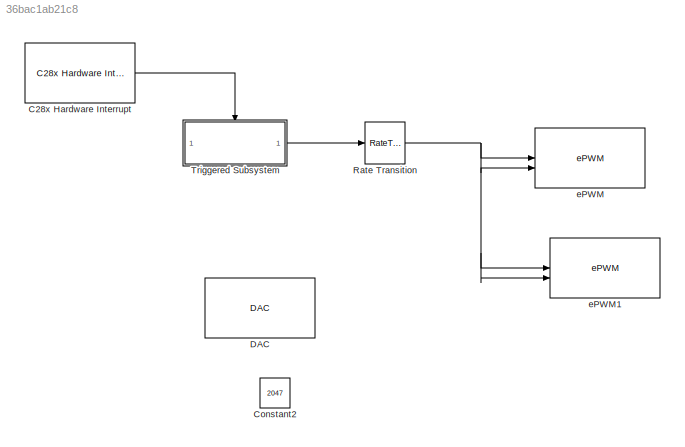
MODEL slx_36bac1ab21c8
KIND model
CONFIG AbsTol = auto
CONFIG EnableMultiTasking = on
CONFIG FixedStep = 10e-6
CONFIG MaxStep = auto
CONFIG MinStep = auto
CONFIG RelTol = 1e-3
CONFIG SampleTimeConstraint = Unconstrained
CONFIG SolverName = FixedStepAuto
CONFIG StartTime = 0.0
CONFIG StopTime = Inf
BLOCK [Reference] C28x Hardware Interrupt  REF=c2000lib/Scheduling/C28x Hardware Interrupt
  SourceBlock = c2000lib/Scheduling/C28x Hardware Interrupt
  SourceType = C28x Interrupt Block
BLOCK [Constant] Constant2
  Commented = on
  Value = 2047
BLOCK [Reference] DAC  REF=c2837xDlib/DAC
  Commented = on
  SourceBlock = c2837xDlib/DAC
  SourceType = codertarget.tic2000.blocks.DACWrite
BLOCK [RateTransition] Rate Transition
  Deterministic = off
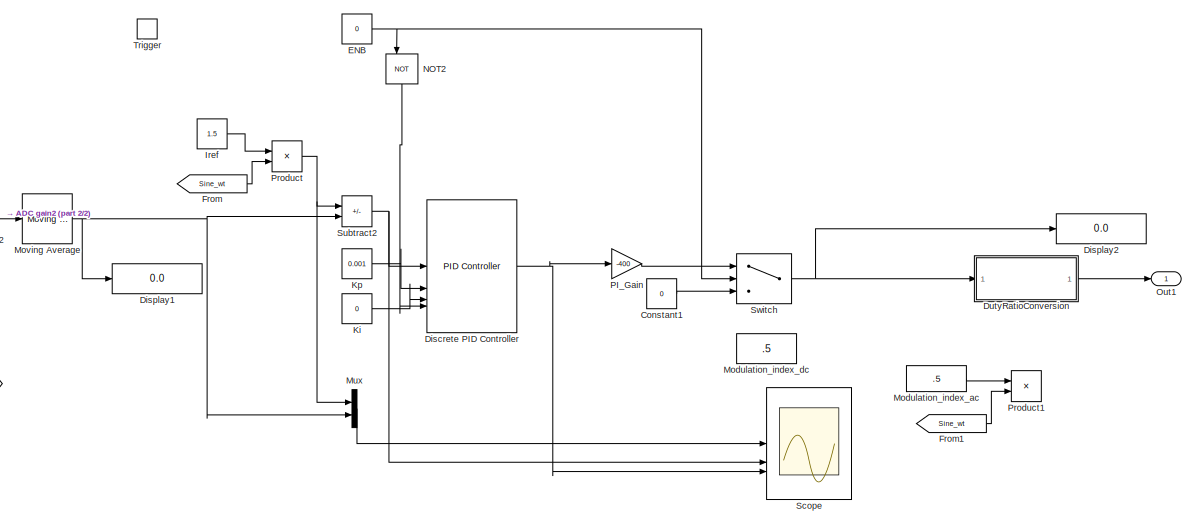
[diagram: Triggered Subsystem - part 1/2, most of the canvas]
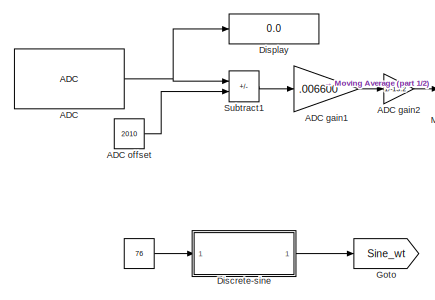
[diagram: Triggered Subsystem - part 2/2, middle left region]
BLOCK [SubSystem] Triggered Subsystem
  TreatAsAtomicUnit = on
BLOCK [Constant] Triggered Subsystem/ 
  Value = 76
BLOCK [Reference] Triggered Subsystem/ADC  REF=c2802xlib/ADC
  LibrarySourceBlock = c2837xDlib/ADC
  SourceBlock = c2802xlib/ADC
  SourceType = ADC Type 3-5
  UserDataPersistent = on
BLOCK [Gain] Triggered Subsystem/ADC gain1
  Gain = .006600
BLOCK [Gain] Triggered Subsystem/ADC gain2
  Gain = 1/-13.2
BLOCK [Constant] Triggered Subsystem/ADC offset
  Value = 2010
BLOCK [Constant] Triggered Subsystem/Constant1
  Value = 0
BLOCK [Reference] Triggered Subsystem/Discrete PID Controller  REF=slpidlib/PID Controller
  LibrarySourceBlock = simulink/Discrete/Discrete PID Controller
  SourceBlock = slpidlib/PID Controller
  SourceType = PID 1dof
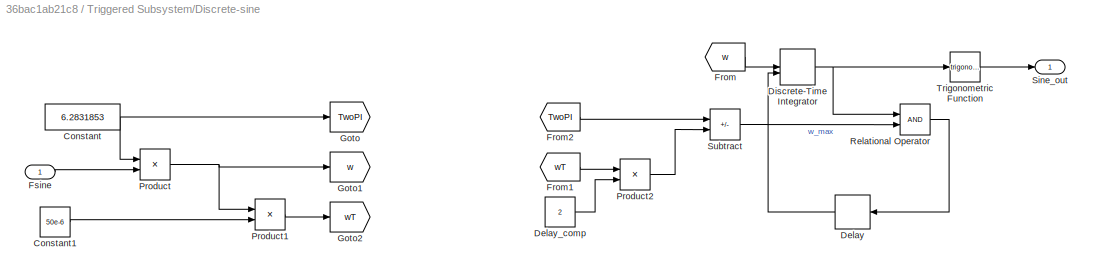
BLOCK [SubSystem] Triggered Subsystem/Discrete-sine
BLOCK [Constant] Triggered Subsystem/Discrete-sine/Constant
  Value = 6.2831853
BLOCK [Constant] Triggered Subsystem/Discrete-sine/Constant1
  Value = 50e-6
BLOCK [Delay] Triggered Subsystem/Discrete-sine/Delay
  DelayLength = 1
  InitialCondition = 0
  InputPortMap = u0
BLOCK [Constant] Triggered Subsystem/Discrete-sine/Delay_comp
  Value = 2
BLOCK [DiscreteIntegrator] Triggered Subsystem/Discrete-sine/Discrete-Time Integrator
  ExternalReset = level
  ICPrevOutput = DiscIntNeverNeededParam
  ICPrevScaledInput = DiscIntNeverNeededParam
  InitialConditionSetting = Auto
  SampleTime = -1
BLOCK [From] Triggered Subsystem/Discrete-sine/From
  GotoTag = w
BLOCK [From] Triggered Subsystem/Discrete-sine/From1
  GotoTag = wT
BLOCK [From] Triggered Subsystem/Discrete-sine/From2
  GotoTag = TwoPI
BLOCK [Inport] Triggered Subsystem/Discrete-sine/Fsine
BLOCK [Goto] Triggered Subsystem/Discrete-sine/Goto
  GotoTag = TwoPI
BLOCK [Goto] Triggered Subsystem/Discrete-sine/Goto1
  GotoTag = w
BLOCK [Goto] Triggered Subsystem/Discrete-sine/Goto2
  GotoTag = wT
BLOCK [Product] Triggered Subsystem/Discrete-sine/Product
BLOCK [Product] Triggered Subsystem/Discrete-sine/Product1
BLOCK [Product] Triggered Subsystem/Discrete-sine/Product2
BLOCK [RelationalOperator] Triggered Subsystem/Discrete-sine/Relational Operator
  InputSameDT = off
  OutDataTypeStr = boolean
  RndMeth = Simplest
BLOCK [Outport] Triggered Subsystem/Discrete-sine/Sine_out
BLOCK [Sum] Triggered Subsystem/Discrete-sine/Subtract
  IconShape = rectangular
  Inputs = +-
BLOCK [Trigonometry] Triggered Subsystem/Discrete-sine/Trigonometric Function
BLOCK [Display] Triggered Subsystem/Display
  Decimation = 1
BLOCK [Display] Triggered Subsystem/Display1
  Decimation = 1
BLOCK [Display] Triggered Subsystem/Display2
  Decimation = 1
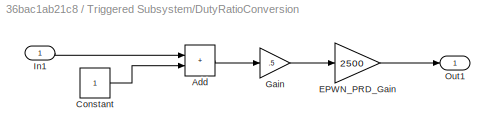
BLOCK [SubSystem] Triggered Subsystem/DutyRatioConversion
BLOCK [Sum] Triggered Subsystem/DutyRatioConversion/Add
  IconShape = rectangular
BLOCK [Constant] Triggered Subsystem/DutyRatioConversion/Constant
BLOCK [Gain] Triggered Subsystem/DutyRatioConversion/EPWN_PRD_Gain
  Gain = 2500
BLOCK [Gain] Triggered Subsystem/DutyRatioConversion/Gain
  Gain = .5
BLOCK [Inport] Triggered Subsystem/DutyRatioConversion/In1
BLOCK [Outport] Triggered Subsystem/DutyRatioConversion/Out1
BLOCK [Constant] Triggered Subsystem/ENB
  Value = 0
BLOCK [From] Triggered Subsystem/From
  GotoTag = Sine_wt
BLOCK [From] Triggered Subsystem/From1
  Commented = on
  GotoTag = Sine_wt
BLOCK [Goto] Triggered Subsystem/Goto
  GotoTag = Sine_wt
BLOCK [Constant] Triggered Subsystem/Iref
  Value = 1.5
BLOCK [Constant] Triggered Subsystem/Ki
  Value = 0
BLOCK [Constant] Triggered Subsystem/Kp
  Value = 0.001
BLOCK [Constant] Triggered Subsystem/Modulation_index_ac
  Commented = on
  Value = .5
BLOCK [Constant] Triggered Subsystem/Modulation_index_dc
  Commented = on
  Value = .5
BLOCK [Reference] Triggered Subsystem/Moving Average  REF=dspstat3/Moving
Average
  SourceBlock = dspstat3/Moving\nAverage
  SourceType = dsp.simulink.MovingAverage
BLOCK [Mux] Triggered Subsystem/Mux
  DisplayOption = bar
  Inputs = 2
BLOCK [Logic] Triggered Subsystem/NOT2
  AllPortsSameDT = off
  IconShape = distinctive
  NameLocation = left
  Operator = NOT
  OutDataTypeStr = boolean
BLOCK [Outport] Triggered Subsystem/Out1
BLOCK [Gain] Triggered Subsystem/PI_Gain
  Gain = -400
BLOCK [Product] Triggered Subsystem/Product
BLOCK [Product] Triggered Subsystem/Product1
  Commented = on
BLOCK [Scope] Triggered Subsystem/Scope
  Floating = off
  NumInputPorts = 3
  ScopeSpecificationString = Simulink.scopes.TimeScopeBlockCfg('CurrentConfiguration', extmgr.ConfigurationSet(extmgr.Configuration('Core','General UI',true),extmgr.Configuration('Core','Source UI',true),extmgr.Configuration('Sources','WiredSimulink',true),extmgr.Configuration('Visuals','Time Domain',true,'SerializedDisplays',{struct('MinYLimReal','-0.09097','MaxYLimReal','0.69288','YLabelReal','','MinYLimMag','0.00000','MaxY...<+3001ch>
BLOCK [Sum] Triggered Subsystem/Subtract1
  IconShape = rectangular
  Inputs = +-
BLOCK [Sum] Triggered Subsystem/Subtract2
  IconShape = rectangular
  Inputs = +-
BLOCK [Switch] Triggered Subsystem/Switch
  Criteria = u2 > Threshold
  InputSameDT = off
  SaturateOnIntegerOverflow = off
BLOCK [TriggerPort] Triggered Subsystem/Trigger
  StatesWhenEnabling = held
  TriggerType = function-call
  VariantControl = (inherit)
BLOCK [Reference] ePWM  REF=c2802xlib/ePWM
  LibrarySourceBlock = c2837xDlib/ePWM
  SourceBlock = c2802xlib/ePWM
  SourceType = ePWM Type 1-4
  UserDataPersistent = on
BLOCK [Reference] ePWM1  REF=c2802xlib/ePWM
  LibrarySourceBlock = c2837xDlib/ePWM
  SourceBlock = c2802xlib/ePWM
  SourceType = ePWM Type 1-4
  UserDataPersistent = on
LINE C28x Hardware Interrupt:1 -> Triggered Subsystem:trigger
NET Rate Transition:1 -> ePWM1:1, ePWM1:2, ePWM:1, ePWM:2
LINE Triggered Subsystem/ :1 -> Triggered Subsystem/Discrete-sine:1
LINE Triggered Subsystem/ADC gain1:1 -> Triggered Subsystem/ADC gain2:1
LINE Triggered Subsystem/ADC gain2:1 -> Triggered Subsystem/Moving Average:1
LINE Triggered Subsystem/ADC offset:1 -> Triggered Subsystem/Subtract1:2
NET Triggered Subsystem/ADC:1 -> Triggered Subsystem/Display:1, Triggered Subsystem/Subtract1:1
LINE Triggered Subsystem/Constant1:1 -> Triggered Subsystem/Switch:3
NET Triggered Subsystem/Discrete PID Controller:1 -> Triggered Subsystem/PI_Gain:1, Triggered Subsystem/Scope:3
LINE Triggered Subsystem/Discrete-sine/Constant1:1 -> Triggered Subsystem/Discrete-sine/Product1:2
NET Triggered Subsystem/Discrete-sine/Constant:1 -> Triggered Subsystem/Discrete-sine/Goto:1, Triggered Subsystem/Discrete-sine/Product:1
LINE Triggered Subsystem/Discrete-sine/Delay:1 -> Triggered Subsystem/Discrete-sine/Discrete-Time Integrator:2
LINE Triggered Subsystem/Discrete-sine/Delay_comp:1 -> Triggered Subsystem/Discrete-sine/Product2:2
NET Triggered Subsystem/Discrete-sine/Discrete-Time Integrator:1 -> Triggered Subsystem/Discrete-sine/Relational Operator:1, Triggered Subsystem/Discrete-sine/Trigonometric Function:1
LINE Triggered Subsystem/Discrete-sine/From1:1 -> Triggered Subsystem/Discrete-sine/Product2:1
LINE Triggered Subsystem/Discrete-sine/From2:1 -> Triggered Subsystem/Discrete-sine/Subtract:1
LINE Triggered Subsystem/Discrete-sine/From:1 -> Triggered Subsystem/Discrete-sine/Discrete-Time Integrator:1
LINE Triggered Subsystem/Discrete-sine/Fsine:1 -> Triggered Subsystem/Discrete-sine/Product:2
LINE Triggered Subsystem/Discrete-sine/Product1:1 -> Triggered Subsystem/Discrete-sine/Goto2:1
LINE Triggered Subsystem/Discrete-sine/Product2:1 -> Triggered Subsystem/Discrete-sine/Subtract:2
NET Triggered Subsystem/Discrete-sine/Product:1 -> Triggered Subsystem/Discrete-sine/Goto1:1, Triggered Subsystem/Discrete-sine/Product1:1
LINE Triggered Subsystem/Discrete-sine/Relational Operator:1 -> Triggered Subsystem/Discrete-sine/Delay:1
LINE Triggered Subsystem/Discrete-sine/Subtract:1 -> Triggered Subsystem/Discrete-sine/Relational Operator:2
LINE Triggered Subsystem/Discrete-sine/Trigonometric Function:1 -> Triggered Subsystem/Discrete-sine/Sine_out:1
LINE Triggered Subsystem/Discrete-sine:1 -> Triggered Subsystem/Goto:1
LINE Triggered Subsystem/DutyRatioConversion/Add:1 -> Triggered Subsystem/DutyRatioConversion/Gain:1
LINE Triggered Subsystem/DutyRatioConversion/Constant:1 -> Triggered Subsystem/DutyRatioConversion/Add:2
LINE Triggered Subsystem/DutyRatioConversion/EPWN_PRD_Gain:1 -> Triggered Subsystem/DutyRatioConversion/Out1:1
LINE Triggered Subsystem/DutyRatioConversion/Gain:1 -> Triggered Subsystem/DutyRatioConversion/EPWN_PRD_Gain:1
LINE Triggered Subsystem/DutyRatioConversion/In1:1 -> Triggered Subsystem/DutyRatioConversion/Add:1
LINE Triggered Subsystem/DutyRatioConversion:1 -> Triggered Subsystem/Out1:1
NET Triggered Subsystem/ENB:1 -> Triggered Subsystem/NOT2:1, Triggered Subsystem/Switch:2
LINE Triggered Subsystem/From1:1 -> Triggered Subsystem/Product1:2
LINE Triggered Subsystem/From:1 -> Triggered Subsystem/Product:2
LINE Triggered Subsystem/Iref:1 -> Triggered Subsystem/Product:1
LINE Triggered Subsystem/Ki:1 -> Triggered Subsystem/Discrete PID Controller:3
LINE Triggered Subsystem/Kp:1 -> Triggered Subsystem/Discrete PID Controller:2
LINE Triggered Subsystem/Modulation_index_ac:1 -> Triggered Subsystem/Product1:1
NET Triggered Subsystem/Moving Average:1 -> Triggered Subsystem/Display1:1, Triggered Subsystem/Mux:2, Triggered Subsystem/Subtract2:2
LINE Triggered Subsystem/Mux:1 -> Triggered Subsystem/Scope:1
LINE Triggered Subsystem/NOT2:1 -> Triggered Subsystem/Discrete PID Controller:4
LINE Triggered Subsystem/PI_Gain:1 -> Triggered Subsystem/Switch:1
NET Triggered Subsystem/Product:1 -> Triggered Subsystem/Mux:1, Triggered Subsystem/Subtract2:1
LINE Triggered Subsystem/Subtract1:1 -> Triggered Subsystem/ADC gain1:1
NET Triggered Subsystem/Subtract2:1 -> Triggered Subsystem/Discrete PID Controller:1, Triggered Subsystem/Scope:2
NET Triggered Subsystem/Switch:1 -> Triggered Subsystem/Display2:1, Triggered Subsystem/DutyRatioConversion:1
LINE Triggered Subsystem:1 -> Rate Transition:1
note: NET lines group one-source signal fan-out (src -> all destinations, sorted); 1:1 wires keep LINE
